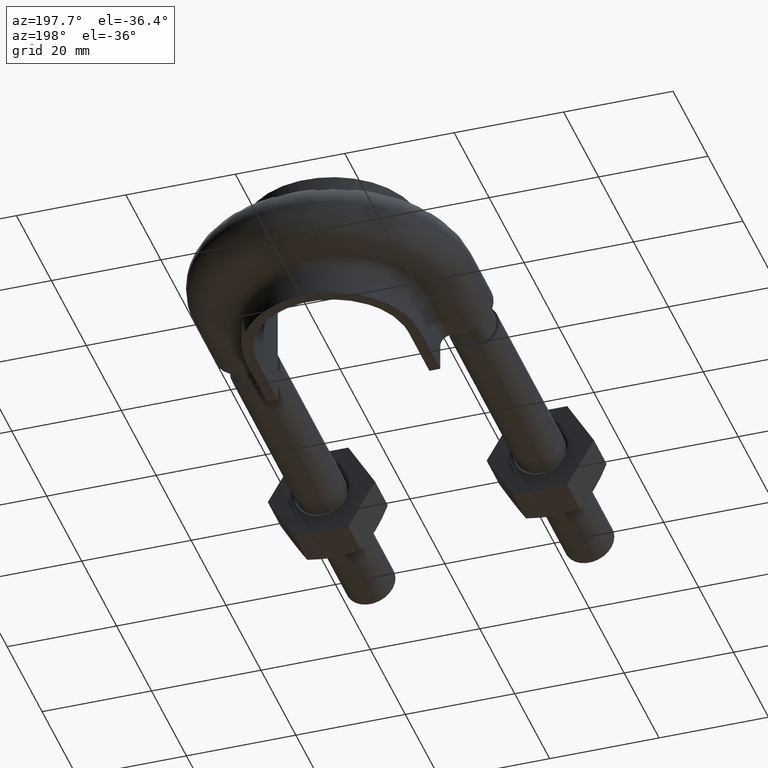
[diagram: clean part render]
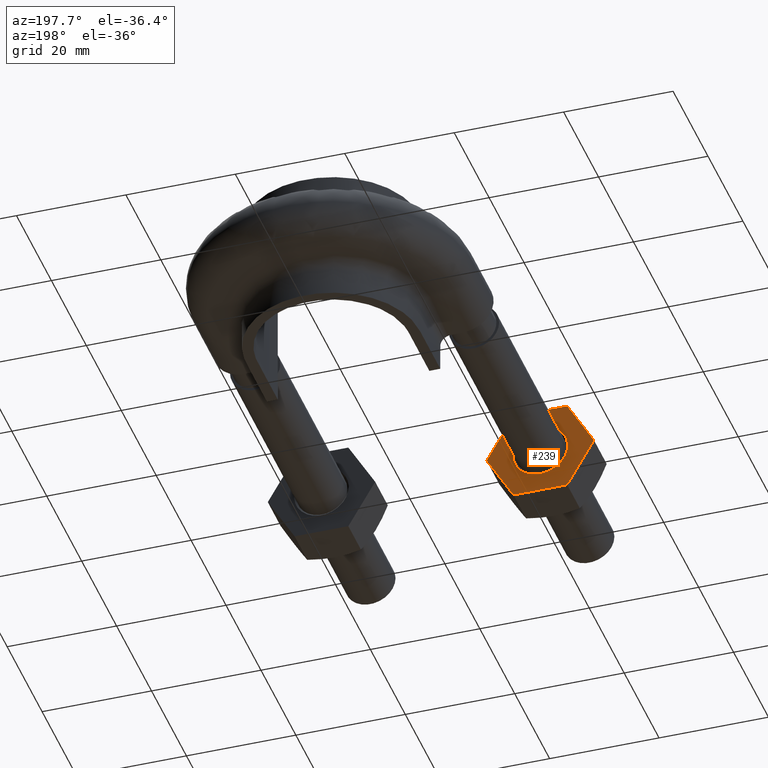
[diagram: same view with one face highlighted and labeled with its STEP entity id]
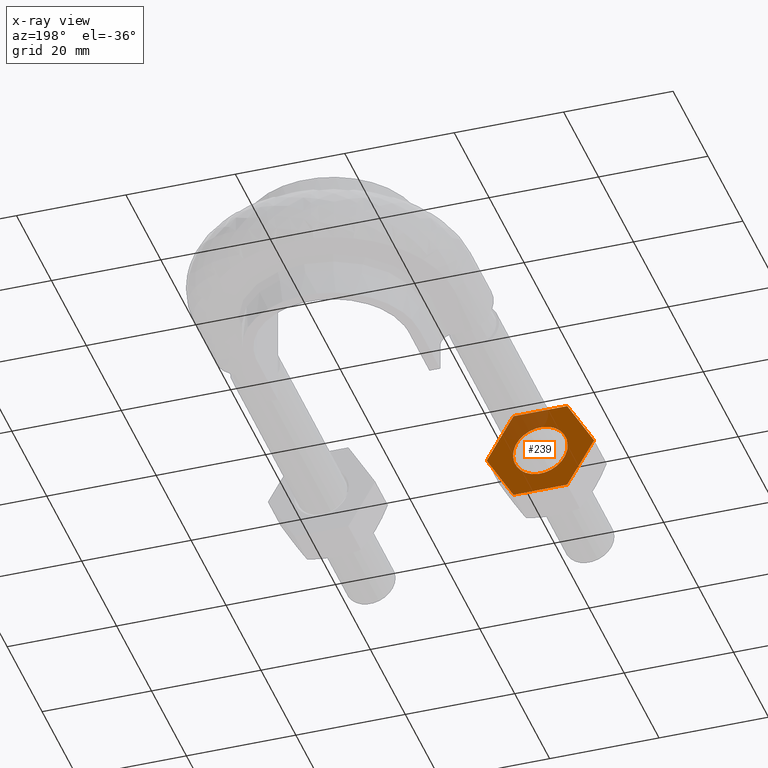
[diagram: x-ray of the same camera — body ghosted, the highlighted face saturated]
A machine part, auxiliary view. The second image highlights one B-rep face of the part: STEP entity #239.
The next image is the same camera in x-ray: the body ghosted, the highlighted face saturated — about 18% of this face is hidden behind the body in this view.
In plain terms, the highlighted planar face has unit normal (-0, -1, -0).
Its self-contained STEP definition (entity closure, byte-faithful):
#239 = ADVANCED_FACE( '', ( #333, #334 ), #335, .F. );
#333 = FACE_BOUND( '', #1355, .T. );
#334 = FACE_OUTER_BOUND( '', #1356, .T. );
#335 = PLANE( '', #1357 );
#1355 = EDGE_LOOP( '', ( #1595 ) );
#1356 = EDGE_LOOP( '', ( #1596, #1597, #1598, #1599, #1600, #1601, #1602, #1603, #1604, #1605, #1606, #1607 ) );
#1357 = AXIS2_PLACEMENT_3D( '', #1608, #1609, #1610 );
#1595 = ORIENTED_EDGE( '', *, *, #1947, .F. );
#1596 = ORIENTED_EDGE( '', *, *, #1948, .T. );
#1597 = ORIENTED_EDGE( '', *, *, #1949, .T. );
#1598 = ORIENTED_EDGE( '', *, *, #1950, .T. );
#1599 = ORIENTED_EDGE( '', *, *, #1943, .T. );
#1600 = ORIENTED_EDGE( '', *, *, #1951, .T. );
#1601 = ORIENTED_EDGE( '', *, *, #1952, .T. );
#1602 = ORIENTED_EDGE( '', *, *, #1953, .T. );
#1603 = ORIENTED_EDGE( '', *, *, #1954, .T. );
#1604 = ORIENTED_EDGE( '', *, *, #1955, .T. );
#1605 = ORIENTED_EDGE( '', *, *, #1956, .T. );
#1606 = ORIENTED_EDGE( '', *, *, #1957, .T. );
#1607 = ORIENTED_EDGE( '', *, *, #1958, .T. );
#1608 = CARTESIAN_POINT( '', ( -15.1000000000000, 28.0000000000000, 8.48704895708750 ) );
#1609 = DIRECTION( '', ( -4.89842541528951E-016, -1.00000000000000, -6.12303176911189E-017 ) );
#1610 = DIRECTION( '', ( 0.866025403784439, -3.93600925972846E-016, -0.500000000000000 ) );
#1943 = EDGE_CURVE( '', #2098, #2096, #2099, .T. );
#1947 = EDGE_CURVE( '', #2104, #2104, #2105, .T. );
#1948 = EDGE_CURVE( '', #2106, #2107, #2108, .T. );
#1949 = EDGE_CURVE( '', #2107, #2109, #2110, .T. );
#1950 = EDGE_CURVE( '', #2109, #2098, #2111, .T. );
#1951 = EDGE_CURVE( '', #2096, #2112, #2113, .T. );
#1952 = EDGE_CURVE( '', #2112, #2114, #2115, .T. );
#1953 = EDGE_CURVE( '', #2114, #2116, #2117, .T. );
#1954 = EDGE_CURVE( '', #2116, #2118, #2119, .T. );
#1955 = EDGE_CURVE( '', #2118, #2120, #2121, .T. );
#1956 = EDGE_CURVE( '', #2120, #2122, #2123, .T. );
#1957 = EDGE_CURVE( '', #2122, #2124, #2125, .T. );
#1958 = EDGE_CURVE( '', #2124, #2106, #2126, .T. );
#2096 = VERTEX_POINT( '', #2513 );
#2098 = VERTEX_POINT( '', #2516 );
#2099 = LINE( '', #2517, #2518 );
#2104 = VERTEX_POINT( '', #2531 );
#2105 = CIRCLE( '', #2532, 5.00000000000000 );
#2106 = VERTEX_POINT( '', #2533 );
#2107 = VERTEX_POINT( '', #2534 );
#2108 = CIRCLE( '', #2535, 9.80000000000000 );
#2109 = VERTEX_POINT( '', #2536 );
#2110 = LINE( '', #2537, #2538 );
#2111 = CIRCLE( '', #2539, 9.80000000000000 );
#2112 = VERTEX_POINT( '', #2540 );
#2113 = CIRCLE( '', #2541, 9.80000000000000 );
#2114 = VERTEX_POINT( '', #2542 );
#2115 = LINE( '', #2543, #2544 );
#2116 = VERTEX_POINT( '', #2545 );
#2117 = CIRCLE( '', #2546, 9.80000000000000 );
#2118 = VERTEX_POINT( '', #2547 );
#2119 = LINE( '', #2548, #2549 );
#2120 = VERTEX_POINT( '', #2550 );
#2121 = CIRCLE( '', #2551, 9.80000000000000 );
#2122 = VERTEX_POINT( '', #2552 );
#2123 = LINE( '', #2553, #2554 );
#2124 = VERTEX_POINT( '', #2555 );
#2125 = CIRCLE( '', #2556, 9.80000000000000 );
#2126 = LINE( '', #2557, #2558 );
#2513 = CARTESIAN_POINT( '', ( -24.8774993593029, 28.0000000000000, -8.50000000000000 ) );
#2516 = CARTESIAN_POINT( '', ( -15.1225006406971, 28.0000000000000, -8.50000000000000 ) );
#2517 = CARTESIAN_POINT( '', ( -15.1000000000000, 28.0000000000000, -8.50000000000000 ) );
#2518 = VECTOR( '', #2862, 1000.00000000000 );
#2531 = CARTESIAN_POINT( '', ( -24.3301270189222, 28.0000000000000, 2.50000000000000 ) );
#2532 = AXIS2_PLACEMENT_3D( '', #2867, #2868, #2869 );
#2533 = CARTESIAN_POINT( '', ( -10.2000343881808, 28.0000000000000, 0.0259616479013809 ) );
#2534 = CARTESIAN_POINT( '', ( -10.2000343881808, 28.0000000000000, -0.0259616479013804 ) );
#2535 = AXIS2_PLACEMENT_3D( '', #2870, #2871, #2872 );
#2536 = CARTESIAN_POINT( '', ( -15.0775337474837, 28.0000000000000, -8.47403835209862 ) );
#2537 = CARTESIAN_POINT( '', ( -7.73878406783226, 28.0000000000000, 4.23704895708750 ) );
#2538 = VECTOR( '', #2873, 1000.00000000000 );
#2539 = AXIS2_PLACEMENT_3D( '', #2874, #2875, #2876 );
#2540 = CARTESIAN_POINT( '', ( -24.9224662525163, 28.0000000000000, -8.47403835209862 ) );
#2541 = AXIS2_PLACEMENT_3D( '', #2877, #2878, #2879 );
#2542 = CARTESIAN_POINT( '', ( -29.7999656118192, 28.0000000000000, -0.0259616479013813 ) );
#2543 = CARTESIAN_POINT( '', ( -29.8112159321677, 28.0000000000000, -0.00647552145625091 ) );
#2544 = VECTOR( '', #2880, 1000.00000000000 );
#2545 = CARTESIAN_POINT( '', ( -29.7999656118192, 28.0000000000000, 0.0259616479013827 ) );
#2546 = AXIS2_PLACEMENT_3D( '', #2881, #2882, #2883 );
#2547 = CARTESIAN_POINT( '', ( -24.9224662525163, 28.0000000000000, 8.47403835209862 ) );
#2548 = CARTESIAN_POINT( '', ( -22.4612159321677, 28.0000000000000, 12.7370489570875 ) );
#2549 = VECTOR( '', #2884, 1000.00000000000 );
#2550 = CARTESIAN_POINT( '', ( -24.8774993593029, 28.0000000000000, 8.50000000000000 ) );
#2551 = AXIS2_PLACEMENT_3D( '', #2885, #2886, #2887 );
#2552 = CARTESIAN_POINT( '', ( -15.1225006406971, 28.0000000000000, 8.50000000000000 ) );
#2553 = CARTESIAN_POINT( '', ( -15.1000000000000, 28.0000000000000, 8.50000000000000 ) );
#2554 = VECTOR( '', #2888, 1000.00000000000 );
#2555 = CARTESIAN_POINT( '', ( -15.0775337474837, 28.0000000000000, 8.47403835209862 ) );
#2556 = AXIS2_PLACEMENT_3D( '', #2889, #2890, #2891 );
#2557 = CARTESIAN_POINT( '', ( -15.0887840678323, 28.0000000000000, 8.49352447854375 ) );
#2558 = VECTOR( '', #2892, 1000.00000000000 );
#2862 = DIRECTION( '', ( -1.00000000000000, 4.89842541528951E-016, 0.000000000000000 ) );
#2867 = CARTESIAN_POINT( '', ( -20.0000000000000, 28.0000000000000, 1.11228300875288E-015 ) );
#2868 = DIRECTION( '', ( 4.89842541528951E-016, 1.00000000000000, 6.12303176911189E-017 ) );
#2869 = DIRECTION( '', ( -0.866025403784439, 3.93600925972846E-016, 0.500000000000000 ) );
#2870 = CARTESIAN_POINT( '', ( -20.0000000000000, 28.0000000000000, 1.11228300875288E-015 ) );
#2871 = DIRECTION( '', ( 4.89842541528951E-016, 1.00000000000000, 6.12303176911189E-017 ) );
#2872 = DIRECTION( '', ( -0.866025403784439, 3.93600925972846E-016, 0.500000000000000 ) );
#2873 = DIRECTION( '', ( -0.500000000000000, 2.97948281366776E-016, -0.866025403784439 ) );
#2874 = CARTESIAN_POINT( '', ( -20.0000000000000, 28.0000000000000, 1.11228300875288E-015 ) );
#2875 = DIRECTION( '', ( 4.89842541528951E-016, 1.00000000000000, 6.12303176911189E-017 ) );
#2876 = DIRECTION( '', ( -0.866025403784439, 3.93600925972846E-016, 0.500000000000000 ) );
#2877 = CARTESIAN_POINT( '', ( -20.0000000000000, 28.0000000000000, 1.11228300875288E-015 ) );
#2878 = DIRECTION( '', ( 4.89842541528951E-016, 1.00000000000000, 6.12303176911189E-017 ) );
#2879 = DIRECTION( '', ( -0.866025403784439, 3.93600925972846E-016, 0.500000000000000 ) );
#2880 = DIRECTION( '', ( -0.500000000000000, 1.91894260162175E-016, 0.866025403784439 ) );
#2881 = CARTESIAN_POINT( '', ( -20.0000000000000, 28.0000000000000, 1.11228300875288E-015 ) );
#2882 = DIRECTION( '', ( 4.89842541528951E-016, 1.00000000000000, 6.12303176911189E-017 ) );
#2883 = DIRECTION( '', ( -0.866025403784439, 3.93600925972846E-016, 0.500000000000000 ) );
#2884 = DIRECTION( '', ( 0.500000000000000, -2.97948281366776E-016, 0.866025403784439 ) );
#2885 = CARTESIAN_POINT( '', ( -20.0000000000000, 28.0000000000000, 1.11228300875288E-015 ) );
#2886 = DIRECTION( '', ( 4.89842541528951E-016, 1.00000000000000, 6.12303176911189E-017 ) );
#2887 = DIRECTION( '', ( -0.866025403784439, 3.93600925972846E-016, 0.500000000000000 ) );
#2888 = DIRECTION( '', ( 1.00000000000000, -4.89842541528951E-016, 0.000000000000000 ) );
#2889 = CARTESIAN_POINT( '', ( -20.0000000000000, 28.0000000000000, 1.11228300875288E-015 ) );
#2890 = DIRECTION( '', ( 4.89842541528951E-016, 1.00000000000000, 6.12303176911189E-017 ) );
#2891 = DIRECTION( '', ( -0.866025403784439, 3.93600925972846E-016, 0.500000000000000 ) );
#2892 = DIRECTION( '', ( 0.500000000000000, -1.91894260162175E-016, -0.866025403784439 ) );